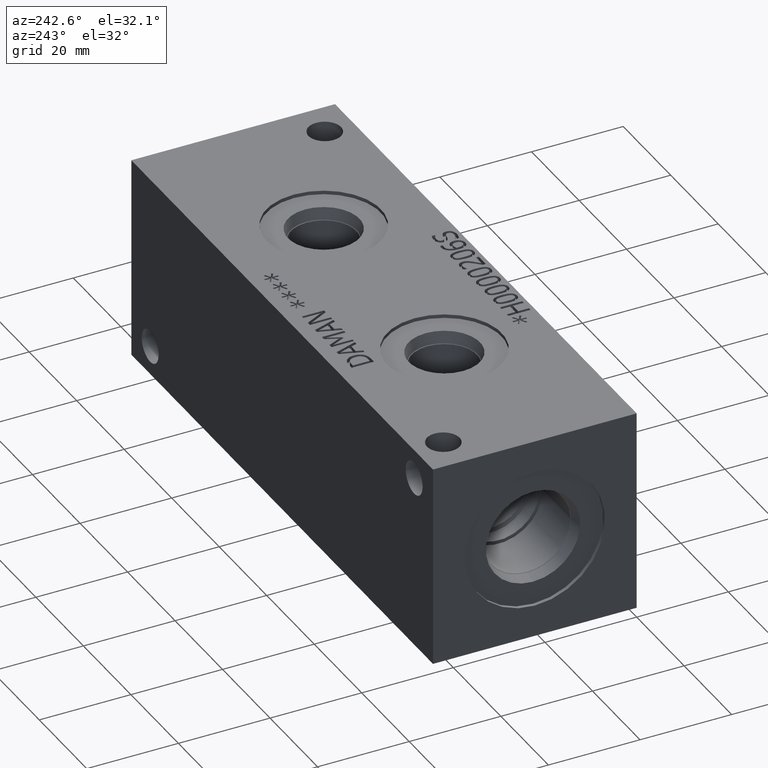
[diagram: clean part render]
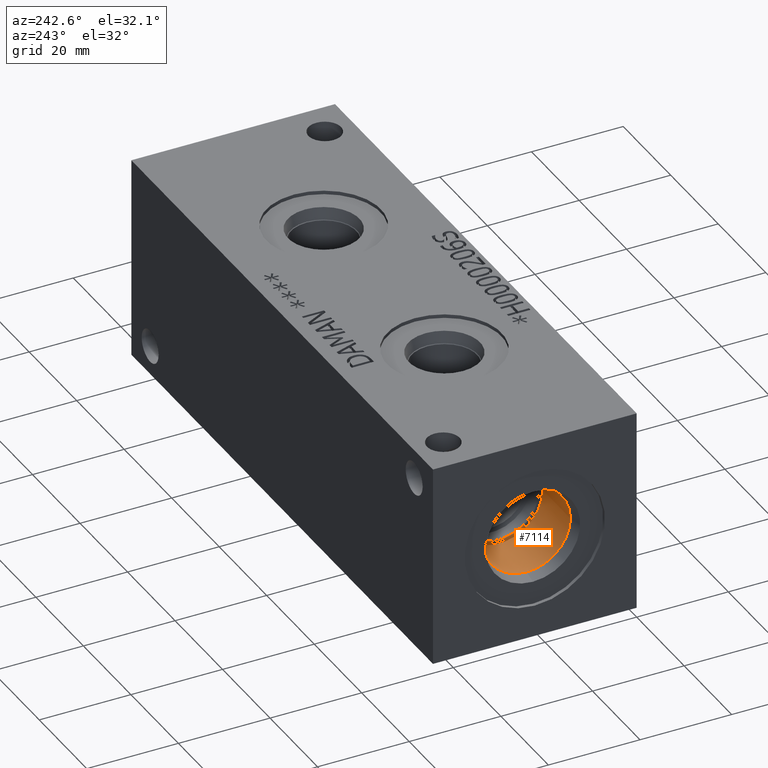
[diagram: same view with one face highlighted and labeled with its STEP entity id]
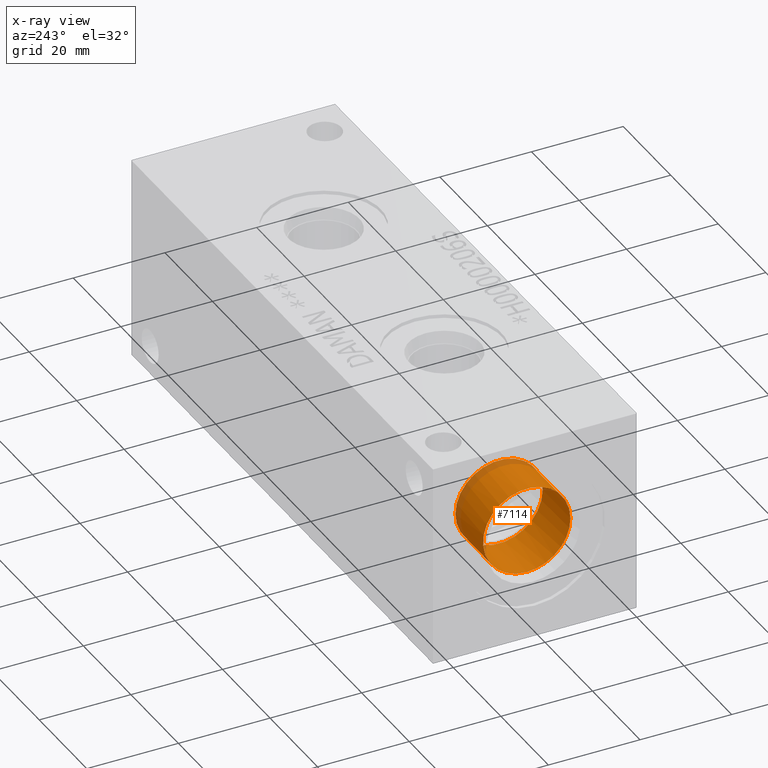
[diagram: x-ray of the same camera — body ghosted, the highlighted face saturated]
A machine part, auxiliary view. The second image highlights one B-rep face of the part: STEP entity #7114.
The next image is the same camera in x-ray: the body ghosted, the highlighted face saturated — about 10% of this face is hidden behind the body in this view.
In plain terms, the highlighted cylindrical surface (bore or boss wall) has radius 9.525 mm, axis along (-1, 0, 0).
Its self-contained STEP definition (entity closure, byte-faithful):
#45=CYLINDRICAL_SURFACE('',#7409,9.525);
#85=CIRCLE('',#7406,9.525);
#86=CIRCLE('',#7407,9.525);
#88=CIRCLE('',#7410,9.525);
#89=CIRCLE('',#7411,9.525);
#863=FACE_OUTER_BOUND('',#1261,.T.);
#1261=EDGE_LOOP('',(#6043,#6044,#6045,#6046,#6047,#6048));
#1946=LINE('',#12163,#2611);
#2611=VECTOR('',#8619,9.525);
#3240=VERTEX_POINT('',#12153);
#3241=VERTEX_POINT('',#12154);
#3243=VERTEX_POINT('',#12160);
#3244=VERTEX_POINT('',#12161);
#4195=EDGE_CURVE('',#3240,#3241,#85,.T.);
#4196=EDGE_CURVE('',#3241,#3240,#86,.T.);
#4198=EDGE_CURVE('',#3243,#3244,#88,.T.);
#4199=EDGE_CURVE('',#3243,#3241,#1946,.T.);
#4200=EDGE_CURVE('',#3244,#3243,#89,.T.);
#6043=ORIENTED_EDGE('',*,*,#4198,.F.);
#6044=ORIENTED_EDGE('',*,*,#4199,.T.);
#6045=ORIENTED_EDGE('',*,*,#4195,.F.);
#6046=ORIENTED_EDGE('',*,*,#4196,.F.);
#6047=ORIENTED_EDGE('',*,*,#4199,.F.);
#6048=ORIENTED_EDGE('',*,*,#4200,.F.);
#7114=ADVANCED_FACE('',(#863),#45,.F.);
#7406=AXIS2_PLACEMENT_3D('',#12155,#8609,#8610);
#7407=AXIS2_PLACEMENT_3D('',#12156,#8611,#8612);
#7409=AXIS2_PLACEMENT_3D('',#12159,#8615,#8616);
#7410=AXIS2_PLACEMENT_3D('',#12162,#8617,#8618);
#7411=AXIS2_PLACEMENT_3D('',#12164,#8620,#8621);
#8609=DIRECTION('center_axis',(-1.,0.,0.));
#8610=DIRECTION('ref_axis',(0.,1.,0.));
#8611=DIRECTION('center_axis',(-1.,0.,0.));
#8612=DIRECTION('ref_axis',(0.,1.,0.));
#8615=DIRECTION('center_axis',(-1.,0.,0.));
#8616=DIRECTION('ref_axis',(0.,1.,0.));
#8617=DIRECTION('center_axis',(1.,0.,0.));
#8618=DIRECTION('ref_axis',(0.,1.,0.));
#8619=DIRECTION('',(1.,0.,0.));
#8620=DIRECTION('center_axis',(1.,0.,0.));
#8621=DIRECTION('ref_axis',(0.,1.,0.));
#12153=CARTESIAN_POINT('',(15.0622,31.75,22.225));
#12154=CARTESIAN_POINT('',(15.0622,12.7,22.225));
#12155=CARTESIAN_POINT('Origin',(15.0622,22.225,22.225));
#12156=CARTESIAN_POINT('Origin',(15.0622,22.225,22.225));
#12159=CARTESIAN_POINT('Origin',(7.5311,22.225,22.225));
#12160=CARTESIAN_POINT('',(3.4036,12.7,22.225));
#12161=CARTESIAN_POINT('',(3.4036,22.225,12.7));
#12162=CARTESIAN_POINT('Origin',(3.4036,22.225,22.225));
#12163=CARTESIAN_POINT('',(7.5311,12.7,22.225));
#12164=CARTESIAN_POINT('Origin',(3.4036,22.225,22.225));